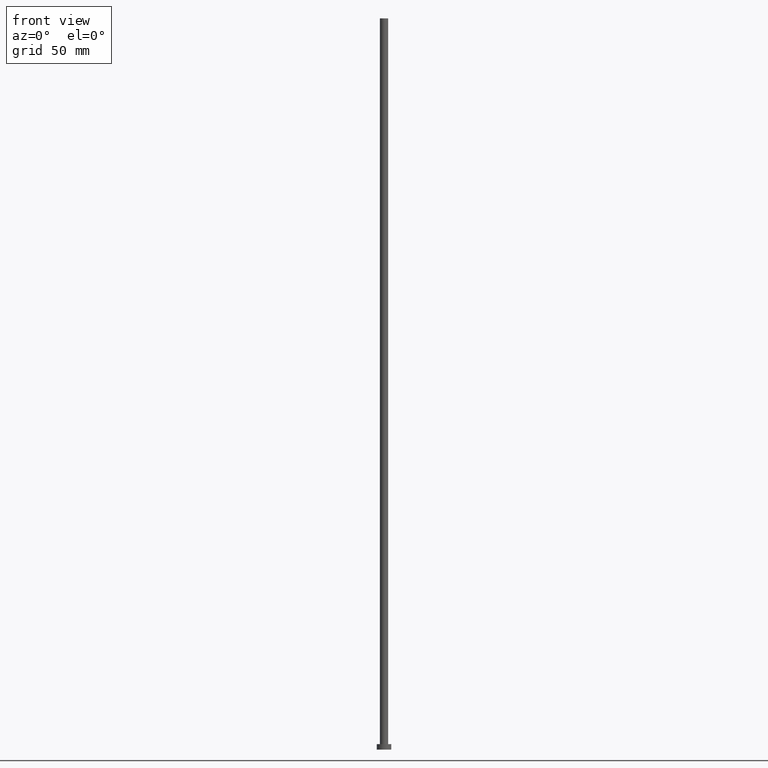
[diagram: clean part render]
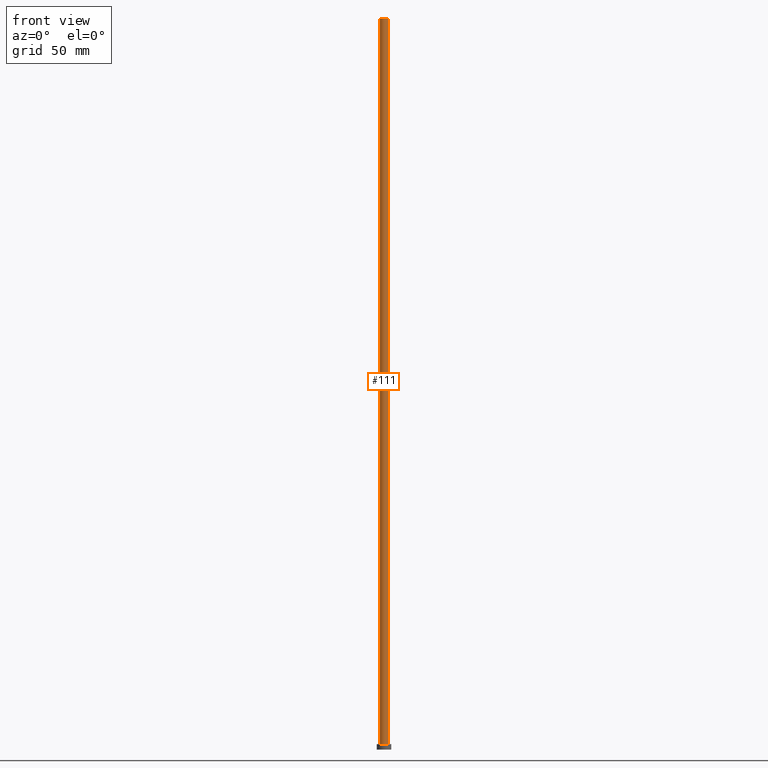
[diagram: same view with one face highlighted and labeled with its STEP entity id]
A machine part, front view. The second image highlights one B-rep face of the part: STEP entity #111.
In plain terms, the highlighted cylindrical surface (edge-blend (fillet) strip) has radius 2.25 mm, axis along (-0, -0, -1).
Its self-contained STEP definition (entity closure, byte-faithful):
#40 = CARTESIAN_POINT ( 'NONE',  ( 0.000000000000000000, 0.000000000000000000, 400.0000000000000000 ) ) ;
#43 = CARTESIAN_POINT ( 'NONE',  ( 2.250000000000000000, 2.755455298081544285E-16, 400.0000000000000000 ) ) ;
#49 = EDGE_CURVE ( 'NONE', #240, #212, #246, .T. ) ;
#52 = VECTOR ( 'NONE', #120, 1000.000000000000000 ) ;
#60 = EDGE_LOOP ( 'NONE', ( #125, #176, #95, #62 ) ) ;
#61 = DIRECTION ( 'NONE',  ( -0.000000000000000000, -0.000000000000000000, -1.000000000000000000 ) ) ;
#62 = ORIENTED_EDGE ( 'NONE', *, *, #49, .T. ) ;
#63 = CARTESIAN_POINT ( 'NONE',  ( 2.250000000000000000, 2.755455298081544285E-16, 400.0000000000000000 ) ) ;
#68 = CARTESIAN_POINT ( 'NONE',  ( 0.000000000000000000, 0.000000000000000000, 3.000000000000000000 ) ) ;
#70 = EDGE_CURVE ( 'NONE', #165, #147, #116, .T. ) ;
#80 = FACE_OUTER_BOUND ( 'NONE', #60, .T. ) ;
#83 = CARTESIAN_POINT ( 'NONE',  ( -2.250000000000000000, 0.000000000000000000, 400.0000000000000000 ) ) ;
#88 = AXIS2_PLACEMENT_3D ( 'NONE', #223, #142, #175 ) ;
#95 = ORIENTED_EDGE ( 'NONE', *, *, #117, .T. ) ;
#111 = ADVANCED_FACE ( 'NONE', ( #80 ), #163, .T. ) ;
#116 = CIRCLE ( 'NONE', #88, 2.250000000000000000 ) ;
#117 = EDGE_CURVE ( 'NONE', #165, #240, #137, .T. ) ;
#120 = DIRECTION ( 'NONE',  ( -0.000000000000000000, -0.000000000000000000, -1.000000000000000000 ) ) ;
#125 = ORIENTED_EDGE ( 'NONE', *, *, #190, .F. ) ;
#137 = LINE ( 'NONE', #193, #230 ) ;
#139 = DIRECTION ( 'NONE',  ( -0.000000000000000000, -0.000000000000000000, -1.000000000000000000 ) ) ;
#142 = DIRECTION ( 'NONE',  ( 0.000000000000000000, 0.000000000000000000, 1.000000000000000000 ) ) ;
#147 = VERTEX_POINT ( 'NONE', #43 ) ;
#153 = AXIS2_PLACEMENT_3D ( 'NONE', #40, #139, #250 ) ;
#163 = CYLINDRICAL_SURFACE ( 'NONE', #153, 2.250000000000000000 ) ;
#164 = DIRECTION ( 'NONE',  ( 0.000000000000000000, 0.000000000000000000, 1.000000000000000000 ) ) ;
#165 = VERTEX_POINT ( 'NONE', #83 ) ;
#167 = AXIS2_PLACEMENT_3D ( 'NONE', #68, #164, #238 ) ;
#169 = CARTESIAN_POINT ( 'NONE',  ( -2.250000000000000000, 0.000000000000000000, 3.000000000000000000 ) ) ;
#175 = DIRECTION ( 'NONE',  ( 1.000000000000000000, 0.000000000000000000, 0.000000000000000000 ) ) ;
#176 = ORIENTED_EDGE ( 'NONE', *, *, #70, .F. ) ;
#190 = EDGE_CURVE ( 'NONE', #147, #212, #235, .T. ) ;
#193 = CARTESIAN_POINT ( 'NONE',  ( -2.250000000000000000, 0.000000000000000000, 400.0000000000000000 ) ) ;
#212 = VERTEX_POINT ( 'NONE', #213 ) ;
#213 = CARTESIAN_POINT ( 'NONE',  ( 2.250000000000000000, 2.755455298081544285E-16, 3.000000000000000000 ) ) ;
#223 = CARTESIAN_POINT ( 'NONE',  ( 0.000000000000000000, 0.000000000000000000, 400.0000000000000000 ) ) ;
#230 = VECTOR ( 'NONE', #61, 1000.000000000000000 ) ;
#235 = LINE ( 'NONE', #63, #52 ) ;
#238 = DIRECTION ( 'NONE',  ( 1.000000000000000000, 0.000000000000000000, 0.000000000000000000 ) ) ;
#240 = VERTEX_POINT ( 'NONE', #169 ) ;
#246 = CIRCLE ( 'NONE', #167, 2.250000000000000000 ) ;
#250 = DIRECTION ( 'NONE',  ( -1.000000000000000000, 0.000000000000000000, 0.000000000000000000 ) ) ;